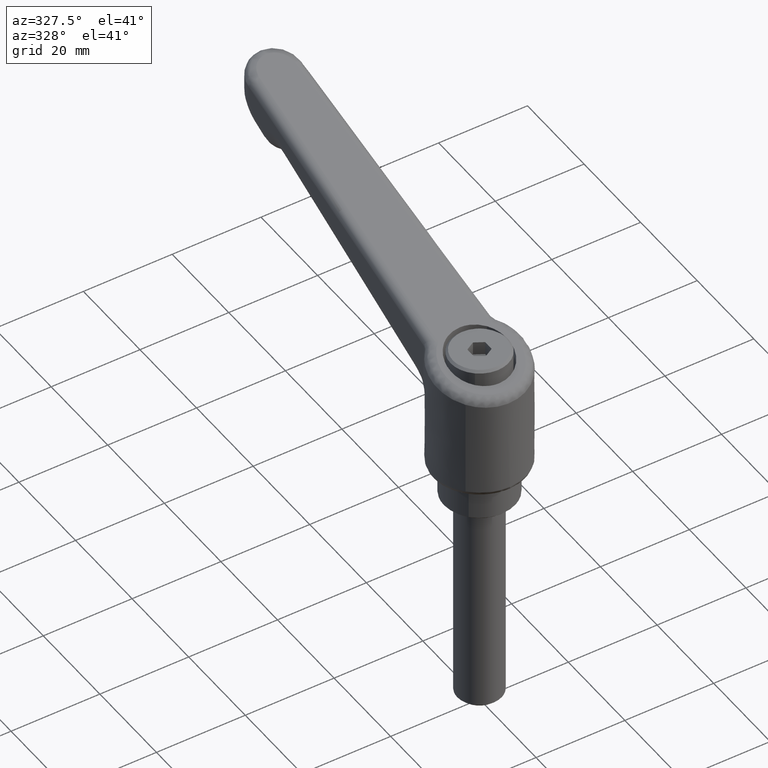
[diagram: clean part render]
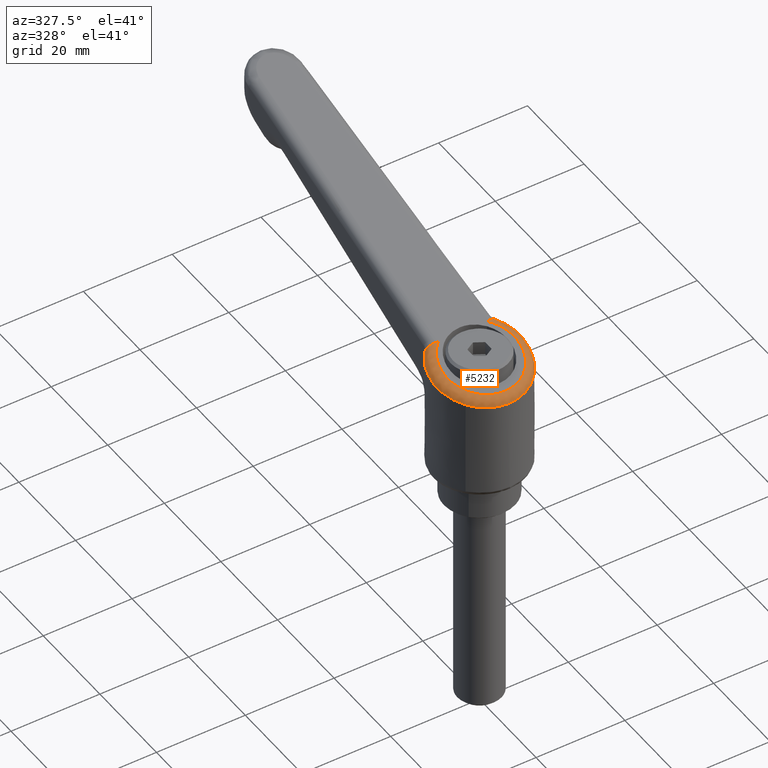
[diagram: same view with one face highlighted and labeled with its STEP entity id]
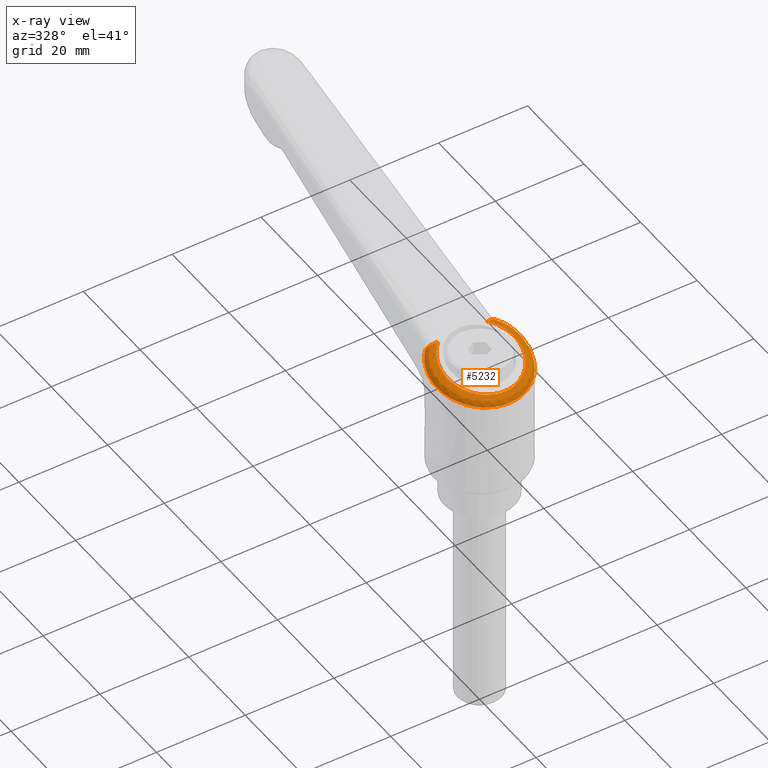
[diagram: x-ray of the same camera — body ghosted, the highlighted face saturated]
A machine part, auxiliary view. The second image highlights one B-rep face of the part: STEP entity #5232.
The next image is the same camera in x-ray: the body ghosted, the highlighted face saturated — about 0% of this face is hidden behind the body in this view.
In plain terms, the highlighted face is a freeform B-spline surface patch.
Its self-contained STEP definition (entity closure, byte-faithful):
#2177=CARTESIAN_POINT('',(-6.823610655429766,-7.980497329307140,22.891822215590260));
#2178=VERTEX_POINT('',#2177);
#2179=CARTESIAN_POINT('',(-7.139241740420342,7.699430327747622,22.822528908771361));
#2180=VERTEX_POINT('',#2179);
#2181=CARTESIAN_POINT('',(-6.823610655429766,-7.980497329307140,22.891822215590256));
#2182=CARTESIAN_POINT('',(-7.235871521434500,-7.627999567568061,22.801317707784730));
#2183=CARTESIAN_POINT('',(-7.609615807687477,-7.234897925188409,22.719268816721080));
#2184=CARTESIAN_POINT('',(-14.488248484233502,0.000000110540548,21.209187716075810));
#2185=CARTESIAN_POINT('',(-7.609615559717934,7.234898150525823,22.719266860720658));
#2186=CARTESIAN_POINT('',(-7.381744137017390,7.474571720486082,22.769291900122631));
#2187=CARTESIAN_POINT('',(-7.139241740420342,7.699430327747622,22.822528908771361));
#2195=(BOUNDED_CURVE()B_SPLINE_CURVE(2,(#2181,#2182,#2183,#2184,#2185,#2186,#2187),.UNSPECIFIED.,.F.,.U.)B_SPLINE_CURVE_WITH_KNOTS((3,2,2,3),(0.308847996444481,0.333333333333333,0.666666666666667,0.681714101473481),.UNSPECIFIED.)CURVE()GEOMETRIC_REPRESENTATION_ITEM()RATIONAL_B_SPLINE_CURVE((0.962529482599804,0.979779418013843,1.0,0.724725290651227,1.0,0.987573465271329,0.976268855369884))REPRESENTATION_ITEM(''));
#2196=EDGE_CURVE('',#2178,#2180,#2195,.T.);
#2268=CARTESIAN_POINT('',(6.841752169418649,-7.964949921515840,25.891804639626351));
#2269=VERTEX_POINT('',#2268);
#2270=CARTESIAN_POINT('',(6.841752169418649,-7.964949921515840,25.891804639626351));
#2271=CARTESIAN_POINT('',(0.015732975373820,-13.828380357866889,24.393275997768502));
#2272=CARTESIAN_POINT('',(-6.823610655429766,-7.980497329307140,22.891822215590256));
#2280=(BOUNDED_CURVE()B_SPLINE_CURVE(2,(#2270,#2271,#2272),.UNSPECIFIED.,.F.,.U.)B_SPLINE_CURVE_WITH_KNOTS((3,3),(0.0,0.308847996444481),.UNSPECIFIED.)CURVE()GEOMETRIC_REPRESENTATION_ITEM()RATIONAL_B_SPLINE_CURVE((1.0,0.744945872637384,0.962529482599804))REPRESENTATION_ITEM(''));
#2281=EDGE_CURVE('',#2269,#2178,#2280,.T.);
#2343=CARTESIAN_POINT('',(6.841752169418649,7.964949921515840,25.891804639626351));
#2344=VERTEX_POINT('',#2343);
#2345=CARTESIAN_POINT('',(-7.139241740420342,7.699430327747622,22.822528908771361));
#2346=CARTESIAN_POINT('',(-0.267237434483416,14.071447203248303,24.331153844491840));
#2347=CARTESIAN_POINT('',(6.841752169418642,7.964949921515840,25.891804639626379));
#2355=(BOUNDED_CURVE()B_SPLINE_CURVE(2,(#2345,#2346,#2347),.UNSPECIFIED.,.F.,.U.)B_SPLINE_CURVE_WITH_KNOTS((3,3),(0.681714101473481,1.0),.UNSPECIFIED.)CURVE()GEOMETRIC_REPRESENTATION_ITEM()RATIONAL_B_SPLINE_CURVE((0.976268855369883,0.737151825379898,1.0))REPRESENTATION_ITEM(''));
#2356=EDGE_CURVE('',#2180,#2344,#2355,.T.);
#4499=CARTESIAN_POINT('',(6.815699914991670,-7.951187561158349,26.225580680634000));
#4500=VERTEX_POINT('',#4499);
#4509=CARTESIAN_POINT('',(6.841752169418649,-7.964949921515840,25.891804639626351));
#4510=CARTESIAN_POINT('',(6.853859786927208,-7.955114455628531,26.003102355773830));
#4511=CARTESIAN_POINT('',(6.844942478059694,-7.950420602596282,26.117073249121091));
#4512=CARTESIAN_POINT('',(6.815699914991670,-7.951187561158349,26.225580680634000));
#4513=B_SPLINE_CURVE_WITH_KNOTS('',3,(#4509,#4510,#4511,#4512),.UNSPECIFIED.,.F.,.U.,(4,4),(0.000000010549703,0.337126375910857),.UNSPECIFIED.);
#4514=EDGE_CURVE('',#2269,#4500,#4513,.T.);
#4589=CARTESIAN_POINT('',(5.940270675266100,-5.519973294428710,28.072980452360650));
#4590=VERTEX_POINT('',#4589);
#4627=CARTESIAN_POINT('',(6.815699914991670,-7.951187561158349,26.225580680634000));
#4628=CARTESIAN_POINT('',(6.776847164123269,-7.952224039955228,26.369502280352108));
#4629=CARTESIAN_POINT('',(6.735899683152852,-7.934386095575589,26.509252974808110));
#4630=CARTESIAN_POINT('',(6.671571994320859,-7.881070794717561,26.713022534366772));
#4631=CARTESIAN_POINT('',(6.649576278599209,-7.858748446168061,26.780148701766031));
#4632=CARTESIAN_POINT('',(6.604872637264183,-7.805249777314331,26.911581116659139));
#4633=CARTESIAN_POINT('',(6.582540020666011,-7.774548066162674,26.974800264596219));
#4634=CARTESIAN_POINT('',(6.537933703850105,-7.705781252450130,27.096595198035761));
#4635=CARTESIAN_POINT('',(6.515659963317729,-7.667713415129088,27.155169235526351));
#4636=CARTESIAN_POINT('',(6.471197899612150,-7.584456024922666,27.267837078720412));
#4637=CARTESIAN_POINT('',(6.448949981854497,-7.539133377237592,27.322069164379389));
#4638=CARTESIAN_POINT('',(6.382767467545852,-7.393338678804280,27.477178574877421));
#4639=CARTESIAN_POINT('',(6.340532647239538,-7.285762016298755,27.567924787307671));
#4640=CARTESIAN_POINT('',(6.279876199056705,-7.110750715467771,27.687504574675700));
#4641=CARTESIAN_POINT('',(6.260110700337241,-7.050117384920137,27.724581295196700));
#4642=CARTESIAN_POINT('',(6.221505207759942,-6.924369251863543,27.793322550541589));
#4643=CARTESIAN_POINT('',(6.202857041723497,-6.859863055740397,27.824638255258758));
#4644=CARTESIAN_POINT('',(6.149175302800781,-6.663166666854674,27.909498088157680));
#4645=CARTESIAN_POINT('',(6.116210469173950,-6.527234955274309,27.954336881123020));
#4646=CARTESIAN_POINT('',(6.070795398181867,-6.316850520976558,28.005893778653121));
#4647=CARTESIAN_POINT('',(6.056290744144198,-6.245400266583697,28.020476353136370));
#4648=CARTESIAN_POINT('',(6.028931231890466,-6.101986151931793,28.044295752354909));
#4649=CARTESIAN_POINT('',(6.016052820796225,-6.029943516164621,28.053572554525189));
#4650=CARTESIAN_POINT('',(5.991825097841295,-5.885227606704326,28.067226219474119));
#4651=CARTESIAN_POINT('',(5.980476040663701,-5.812554218011097,28.071602138725151));
#4652=CARTESIAN_POINT('',(5.964562484715478,-5.703092606344508,28.074689215042529));
#4653=CARTESIAN_POINT('',(5.959443134309769,-5.666530067408090,28.075138084723509));
#4654=CARTESIAN_POINT('',(5.949570309689786,-5.593257056970700,28.074901289362341));
#4655=CARTESIAN_POINT('',(5.944791668683920,-5.556293143372955,28.074206485211288));
#4656=CARTESIAN_POINT('',(5.940270675266100,-5.519973294428710,28.072980452360650));
#4657=B_SPLINE_CURVE_WITH_KNOTS('',3,(#4627,#4628,#4629,#4630,#4631,#4632,#4633,#4634,#4635,#4636,#4637,#4638,#4639,#4640,#4641,#4642,#4643,#4644,#4645,#4646,#4647,#4648,#4649,#4650,#4651,#4652,#4653,#4654,#4655,#4656),.UNSPECIFIED.,.F.,.U.,(4,2,2,2,2,2,2,2,2,2,2,2,2,2,4),(0.0,0.124999999999996,0.187499999999996,0.249999999999996,0.312499999999995,0.374999999999995,0.499999999999995,0.562499999999996,0.624999999999997,0.749999999999998,0.812499999999998,0.874999999999999,0.937499999999999,0.968750000000000,1.0),.UNSPECIFIED.);
#4658=EDGE_CURVE('',#4500,#4590,#4657,.T.);
#4746=CARTESIAN_POINT('',(6.815699914991621,7.951187561158400,26.225580680633950));
#4747=VERTEX_POINT('',#4746);
#4766=CARTESIAN_POINT('',(6.815699914991621,7.951187561158400,26.225580680633950));
#4767=CARTESIAN_POINT('',(6.844584194028115,7.950518681924687,26.116999662675060));
#4768=CARTESIAN_POINT('',(6.853450797864499,7.955219489020862,26.003124545526578));
#4769=CARTESIAN_POINT('',(6.841752169418649,7.964949921515840,25.891804639626351));
#4770=B_SPLINE_CURVE_WITH_KNOTS('',3,(#4766,#4767,#4768,#4769),.UNSPECIFIED.,.F.,.U.,(4,4),(9.789436E-009,0.337050919251190),.UNSPECIFIED.);
#4771=EDGE_CURVE('',#4747,#2344,#4770,.T.);
#4838=CARTESIAN_POINT('',(5.940270675266040,5.519973294428770,28.072980452360650));
#4839=VERTEX_POINT('',#4838);
#4840=CARTESIAN_POINT('',(5.940270675266060,5.519973294428730,28.072980452360650));
#4841=CARTESIAN_POINT('',(5.944791668684234,5.556293143372976,28.074206485211398));
#4842=CARTESIAN_POINT('',(5.949570309690695,5.593257056970640,28.074901289362579));
#4843=CARTESIAN_POINT('',(5.959443134310202,5.666530067408091,28.075138084723601));
#4844=CARTESIAN_POINT('',(5.964562484715880,5.703092606344514,28.074689215042600));
#4845=CARTESIAN_POINT('',(5.980476040663914,5.812554218011131,28.071602138725190));
#4846=CARTESIAN_POINT('',(5.991825097841465,5.885227606704362,28.067226219474140));
#4847=CARTESIAN_POINT('',(6.016052820796337,6.029943516164671,28.053572554525200));
#4848=CARTESIAN_POINT('',(6.028931231890555,6.101986151931844,28.044295752354909));
#4849=CARTESIAN_POINT('',(6.056290744144259,6.245400266583751,28.020476353136370));
#4850=CARTESIAN_POINT('',(6.070795398181920,6.316850520976605,28.005893778653121));
#4851=CARTESIAN_POINT('',(6.116210469173979,6.527234955274365,27.954336881123020));
#4852=CARTESIAN_POINT('',(6.149175302800795,6.663166666854728,27.909498088157651));
#4853=CARTESIAN_POINT('',(6.202857041723500,6.859863055740454,27.824638255258730));
#4854=CARTESIAN_POINT('',(6.221505207759944,6.924369251863593,27.793322550541561));
#4855=CARTESIAN_POINT('',(6.260110700337241,7.050117384920194,27.724581295196678));
#4856=CARTESIAN_POINT('',(6.279876199056694,7.110750715467829,27.687504574675661));
#4857=CARTESIAN_POINT('',(6.340532647239519,7.285762016298810,27.567924787307639));
#4858=CARTESIAN_POINT('',(6.382767467545826,7.393338678804339,27.477178574877382));
#4859=CARTESIAN_POINT('',(6.448949981854463,7.539133377237647,27.322069164379339));
#4860=CARTESIAN_POINT('',(6.471197899612124,7.584456024922723,27.267837078720358));
#4861=CARTESIAN_POINT('',(6.515659963317700,7.667713415129143,27.155169235526309));
#4862=CARTESIAN_POINT('',(6.537933703850073,7.705781252450183,27.096595198035729));
#4863=CARTESIAN_POINT('',(6.582540020665978,7.774548066162727,26.974800264596180));
#4864=CARTESIAN_POINT('',(6.604872637264151,7.805249777314391,26.911581116659100));
#4865=CARTESIAN_POINT('',(6.649576278599171,7.858748446168113,26.780148701765992));
#4866=CARTESIAN_POINT('',(6.671571994320817,7.881070794717614,26.713022534366729));
#4867=CARTESIAN_POINT('',(6.735899683152808,7.934386095575641,26.509252974808060));
#4868=CARTESIAN_POINT('',(6.776847164123224,7.952224039955278,26.369502280352059));
#4869=CARTESIAN_POINT('',(6.815699914991621,7.951187561158400,26.225580680633950));
#4870=B_SPLINE_CURVE_WITH_KNOTS('',3,(#4840,#4841,#4842,#4843,#4844,#4845,#4846,#4847,#4848,#4849,#4850,#4851,#4852,#4853,#4854,#4855,#4856,#4857,#4858,#4859,#4860,#4861,#4862,#4863,#4864,#4865,#4866,#4867,#4868,#4869),.UNSPECIFIED.,.F.,.U.,(4,2,2,2,2,2,2,2,2,2,2,2,2,2,4),(0.0,0.031250000000000,0.062499999999999,0.124999999999999,0.187499999999998,0.249999999999998,0.374999999999997,0.437499999999996,0.499999999999996,0.624999999999996,0.687499999999997,0.749999999999998,0.812499999999998,0.874999999999999,1.0),.UNSPECIFIED.);
#4871=EDGE_CURVE('',#4839,#4747,#4870,.T.);
#5026=CARTESIAN_POINT('',(6.087272173623401,-5.318859253386026,28.112845289449560));
#5027=CARTESIAN_POINT('',(5.541238018970376,-5.997603486814889,27.964768141505829));
#5028=CARTESIAN_POINT('',(4.889981128080330,-6.591496791620342,27.788155997082399));
#5029=CARTESIAN_POINT('',(3.437714601817707,-7.554168875147658,27.394320770053838));
#5030=CARTESIAN_POINT('',(2.636956443253336,-7.922779336626932,27.177165884590259));
#5031=CARTESIAN_POINT('',(0.961054464732773,-8.399990519407895,26.722683718780896));
#5032=CARTESIAN_POINT('',(0.086160228079715,-8.508531662809554,26.485424122083472));
#5033=CARTESIAN_POINT('',(-1.655665425328537,-8.455255742759803,26.013064338773177));
#5034=CARTESIAN_POINT('',(-2.522343374565372,-8.293455321996149,25.778032889155785));
#5035=CARTESIAN_POINT('',(-4.166116393098401,-7.714614642699660,25.332263666888146));
#5036=CARTESIAN_POINT('',(-4.942975283697365,-7.297664471832364,25.121589942736733));
#5037=CARTESIAN_POINT('',(-6.333915135821987,-6.247690037654954,24.744385688188313));
#5038=CARTESIAN_POINT('',(-6.947797405255546,-5.614821310567767,24.577909040424895));
#5039=CARTESIAN_POINT('',(-7.954914174986747,-4.192533562225321,24.304792464039945));
#5040=CARTESIAN_POINT('',(-8.348005119005403,-3.403321954319122,24.198191465958072));
#5041=CARTESIAN_POINT('',(-8.876448648825527,-1.742621757869974,24.054884659820974));
#5042=CARTESIAN_POINT('',(-9.011725951852537,-0.871373954605547,24.018199267445709));
#5043=CARTESIAN_POINT('',(-9.011725951852537,0.871373954605502,24.018199267445709));
#5044=CARTESIAN_POINT('',(-8.876448648826264,1.742621757870100,24.054884659820761));
#5045=CARTESIAN_POINT('',(-8.348005119004709,3.403321954318862,24.198191465958267));
#5046=CARTESIAN_POINT('',(-7.954914174985673,4.192533562225671,24.304792464040197));
#5047=CARTESIAN_POINT('',(-6.947797405256669,5.614821310567334,24.577909040424601));
#5048=CARTESIAN_POINT('',(-6.333915135822034,6.247690037654897,24.744385688188263));
#5049=CARTESIAN_POINT('',(-4.942975283697423,7.297664471832329,25.121589942736737));
#5050=CARTESIAN_POINT('',(-4.166116393098335,7.714614642699610,25.332263666888192));
#5051=CARTESIAN_POINT('',(-2.522343374565677,8.293455321996126,25.778032889155707));
#5052=CARTESIAN_POINT('',(-1.655665425328611,8.455255742759801,26.013064338773152));
#5053=CARTESIAN_POINT('',(0.086160228079633,8.508531662809551,26.485424122083472));
#5054=CARTESIAN_POINT('',(0.961054464732398,8.399990519408211,26.722683718780807));
#5055=CARTESIAN_POINT('',(2.636956443253597,7.922779336626650,27.177165884590313));
#5056=CARTESIAN_POINT('',(3.437714601818221,7.554168875147536,27.394320770053994));
#5057=CARTESIAN_POINT('',(4.889981128079768,6.591496791620496,27.788155997082235));
#5058=CARTESIAN_POINT('',(5.541238018970531,5.997603486814831,27.964768141505903));
#5059=CARTESIAN_POINT('',(6.087272173623338,5.318859253386102,28.112845289449542));
#5060=CARTESIAN_POINT('',(6.093009699648185,-5.323815670540732,28.114401229646258));
#5061=CARTESIAN_POINT('',(5.546434406722365,-6.003146679500229,27.966177332252173));
#5062=CARTESIAN_POINT('',(4.894556491486482,-6.597510059393946,27.789396774345544));
#5063=CARTESIAN_POINT('',(3.440971723424153,-7.560882583479643,27.395204057800374));
#5064=CARTESIAN_POINT('',(2.639513627543239,-7.929717675028093,27.177859358713036));
#5065=CARTESIAN_POINT('',(0.962212328211951,-8.407146390971503,26.722997715845462));
#5066=CARTESIAN_POINT('',(0.086619231853045,-8.515674556239722,26.485548597757887));
#5067=CARTESIAN_POINT('',(-1.656545869257158,-8.462168833855190,26.012825574174357));
#5068=CARTESIAN_POINT('',(-2.523860904687639,-8.300147266223670,25.777621355315805));
#5069=CARTESIAN_POINT('',(-4.168808036573797,-7.720696751789955,25.331533729235495));
#5070=CARTESIAN_POINT('',(-4.946199146722744,-7.303356143360819,25.120715674271860));
#5071=CARTESIAN_POINT('',(-6.338074101669430,-6.252472904373228,24.743257832364922));
#5072=CARTESIAN_POINT('',(-6.952354611352776,-5.619086559292970,24.576673187180688));
#5073=CARTESIAN_POINT('',(-7.960118883575274,-4.195676418782216,24.303381016794191));
#5074=CARTESIAN_POINT('',(-8.353455576666519,-3.405862680326671,24.196713374855971));
#5075=CARTESIAN_POINT('',(-8.882229729095764,-1.743912327361810,24.053316908296377));
#5076=CARTESIAN_POINT('',(-9.017590041786614,-0.872020277925869,24.016609004812260));
#5077=CARTESIAN_POINT('',(-9.017590041786614,0.872020277925824,24.016609004812260));
#5078=CARTESIAN_POINT('',(-8.882229729096494,1.743912327361934,24.053316908296168));
#5079=CARTESIAN_POINT('',(-8.353455576665825,3.405862680326411,24.196713374856145));
#5080=CARTESIAN_POINT('',(-7.960118883574197,4.195676418782561,24.303381016794450));
#5081=CARTESIAN_POINT('',(-6.952354611353909,5.619086559292548,24.576673187180411));
#5082=CARTESIAN_POINT('',(-6.338074101669482,6.252472904373180,24.743257832364893));
#5083=CARTESIAN_POINT('',(-4.946199146722798,7.303356143360776,25.120715674271842));
#5084=CARTESIAN_POINT('',(-4.168808036573727,7.720696751789906,25.331533729235524));
#5085=CARTESIAN_POINT('',(-2.523860904687941,8.300147266223638,25.777621355315723));
#5086=CARTESIAN_POINT('',(-1.656545869257233,8.462168833855188,26.012825574174339));
#5087=CARTESIAN_POINT('',(0.086619231852964,8.515674556239713,26.485548597757859));
#5088=CARTESIAN_POINT('',(0.962212328211572,8.407146390971809,26.722997715845334));
#5089=CARTESIAN_POINT('',(2.639513627543504,7.929717675027810,27.177859358713100));
#5090=CARTESIAN_POINT('',(3.440971723424670,7.560882583479517,27.395204057800527));
#5091=CARTESIAN_POINT('',(4.894556491485916,6.597510059394105,27.789396774345384));
#5092=CARTESIAN_POINT('',(5.546434406722521,6.003146679500165,27.966177332252229));
#5093=CARTESIAN_POINT('',(6.093009699648122,5.323815670540809,28.114401229646248));
#5094=CARTESIAN_POINT('',(7.921974900712178,-6.903784887021387,28.610392090939538));
#5095=CARTESIAN_POINT('',(7.185452466226240,-7.751552178128264,28.410657073326945));
#5096=CARTESIAN_POINT('',(6.320020016390012,-8.470955535927416,28.175963386465529));
#5097=CARTESIAN_POINT('',(4.429336402305293,-9.598139088275161,27.663235318353195));
#5098=CARTESIAN_POINT('',(3.404708985538741,-10.005901373533685,27.385370089069976));
#5099=CARTESIAN_POINT('',(1.299106839280806,-10.489234560298657,26.814358994131332));
#5100=CARTESIAN_POINT('',(0.218310467803732,-10.565018197268790,26.521261496781324));
#5101=CARTESIAN_POINT('',(-1.902462662981218,-10.393064307872100,25.946136234074437));
#5102=CARTESIAN_POINT('',(-2.942321491891410,-10.145458189475852,25.664140449858312));
#5103=CARTESIAN_POINT('',(-4.893800949133095,-9.358909993693699,25.134925363521315));
#5104=CARTESIAN_POINT('',(-5.805294608306088,-8.820073553630666,24.887740493731229));
#5105=CARTESIAN_POINT('',(-7.425862890459417,-7.503444656789224,24.448264085110100));
#5106=CARTESIAN_POINT('',(-8.134804506649683,-6.725782811541864,24.256008615946126));
#5107=CARTESIAN_POINT('',(-9.293275851877384,-5.000701531703042,23.941846706264435));
#5108=CARTESIAN_POINT('',(-9.742694760609030,-4.053455294527199,23.819970318735315));
#5109=CARTESIAN_POINT('',(-10.346088096584573,-2.070704356037967,23.656338129214841));
#5110=CARTESIAN_POINT('',(-10.500000000000002,-1.035407288876002,23.614599282846953));
#5111=CARTESIAN_POINT('',(-10.500000000000002,1.035407288875948,23.614599282846953));
#5112=CARTESIAN_POINT('',(-10.346088096583834,2.070704356037507,23.656338129216355));
#5113=CARTESIAN_POINT('',(-9.742694760609812,4.053455294527498,23.819970318733805));
#5114=CARTESIAN_POINT('',(-9.293275851875888,5.000701531702227,23.941846706267494));
#5115=CARTESIAN_POINT('',(-8.134804506651250,6.725782811542582,24.256008615943049));
#5116=CARTESIAN_POINT('',(-7.425862890460256,7.503444656790721,24.448264085111639));
#5117=CARTESIAN_POINT('',(-5.805294608305378,8.820073553629063,24.887740493729659));
#5118=CARTESIAN_POINT('',(-4.893800949133619,9.358909993695987,25.134925363519717));
#5119=CARTESIAN_POINT('',(-2.942321491891157,10.145458189473452,25.664140449859850));
#5120=CARTESIAN_POINT('',(-1.902462662981605,10.393064307872095,25.946136234074416));
#5121=CARTESIAN_POINT('',(0.218310467803928,10.565018197268783,26.521261496781307));
#5122=CARTESIAN_POINT('',(1.299106839279755,10.489234560300559,26.814358994130650));
#5123=CARTESIAN_POINT('',(3.404708985539649,10.005901373531819,27.385370089070637));
#5124=CARTESIAN_POINT('',(4.429336402306480,9.598139088273335,27.663235318352754));
#5125=CARTESIAN_POINT('',(6.320020016388761,8.470955535929280,28.175963386465966));
#5126=CARTESIAN_POINT('',(7.185452466226708,7.751552178126577,28.410657073325520));
#5127=CARTESIAN_POINT('',(7.921974900712097,6.903784887021485,28.610392090939516));
#5128=CARTESIAN_POINT('',(8.181221319814670,-6.581612218981611,26.178047493785861));
#5129=CARTESIAN_POINT('',(7.505566790572419,-7.421481609953466,26.029757850435665));
#5130=CARTESIAN_POINT('',(6.699742978686103,-8.156309560593062,25.852901643855727));
#5131=CARTESIAN_POINT('',(4.902844870752059,-9.347408756811214,25.458542272208874));
#5132=CARTESIAN_POINT('',(3.912075553408531,-9.803456033206320,25.241107384028869));
#5133=CARTESIAN_POINT('',(1.838538671353461,-10.393837642698474,24.786061161518596));
#5134=CARTESIAN_POINT('',(0.756077863091647,-10.528084052804491,24.548517680927812));
#5135=CARTESIAN_POINT('',(-1.398975194595418,-10.462078135034796,24.075610575433153));
#5136=CARTESIAN_POINT('',(-2.471247798749559,-10.261833985816036,23.840316654361214));
#5137=CARTESIAN_POINT('',(-4.504959910452875,-9.545556197870322,23.394061744597298));
#5138=CARTESIAN_POINT('',(-5.466096133074896,-9.029627011126934,23.183166118996660));
#5139=CARTESIAN_POINT('',(-7.186987819258914,-7.730432174838763,22.805571119506915));
#5140=CARTESIAN_POINT('',(-7.946485067542697,-6.947358599398151,22.638926894605355));
#5141=CARTESIAN_POINT('',(-9.192503501923245,-5.187513804604528,22.365537728501021));
#5142=CARTESIAN_POINT('',(-9.678836734585284,-4.211004875372683,22.258832675266341));
#5143=CARTESIAN_POINT('',(-10.332634466321206,-2.156179394895512,22.115386048070757));
#5144=CARTESIAN_POINT('',(-10.500000000000007,-1.078170552710572,22.078665397622480));
#5145=CARTESIAN_POINT('',(-10.500000000000007,1.078170552710516,22.078665397622480));
#5146=CARTESIAN_POINT('',(-10.332634466321245,2.156179394895380,22.115386048070764));
#5147=CARTESIAN_POINT('',(-9.678836734585307,4.211004875372651,22.258832675266348));
#5148=CARTESIAN_POINT('',(-9.192503501923021,5.187513804604842,22.365537728502538));
#5149=CARTESIAN_POINT('',(-7.946485067542985,6.947358599397738,22.638926894603827));
#5150=CARTESIAN_POINT('',(-7.186987819258972,7.730432174838693,22.805571119506876));
#5151=CARTESIAN_POINT('',(-5.466096133074972,9.029627011126891,23.183166118996635));
#5152=CARTESIAN_POINT('',(-4.504959910452765,9.545556197870333,23.394061744597266));
#5153=CARTESIAN_POINT('',(-2.471247798749956,10.261833985815928,23.840316654361178));
#5154=CARTESIAN_POINT('',(-1.398975194595536,10.462078135034785,24.075610575433142));
#5155=CARTESIAN_POINT('',(0.756077863091572,10.528084052804491,24.548517680927787));
#5156=CARTESIAN_POINT('',(1.838538671352972,10.393837642698594,24.786061161518376));
#5157=CARTESIAN_POINT('',(3.912075553408880,9.803456033206237,25.241107384029061));
#5158=CARTESIAN_POINT('',(4.902844870752608,9.347408756810856,25.458542272208902));
#5159=CARTESIAN_POINT('',(6.699742978685496,8.156309560593460,25.852901643855706));
#5160=CARTESIAN_POINT('',(7.505566790572552,7.421481609953292,26.029757850435839));
#5161=CARTESIAN_POINT('',(8.181221319814593,6.581612218981706,26.178047493785840));
#5162=CARTESIAN_POINT('',(8.182032073199773,-6.580604673411229,26.170440709388508));
#5163=CARTESIAN_POINT('',(7.506578555470861,-7.420438376991080,26.022232694335955));
#5164=CARTESIAN_POINT('',(6.700958025268420,-8.155302748904198,25.845468255540734));
#5165=CARTESIAN_POINT('',(4.904400481227859,-9.346585036104589,25.451299226250814));
#5166=CARTESIAN_POINT('',(3.913765868910426,-9.802781577066103,25.233963672322201));
#5167=CARTESIAN_POINT('',(1.840386901128266,-10.393510788751312,24.779111700579289));
#5168=CARTESIAN_POINT('',(0.757946434459527,-10.527955718350881,24.541663021008368));
#5169=CARTESIAN_POINT('',(-1.397178154505797,-10.462324458174772,24.068934322679489));
#5170=CARTESIAN_POINT('',(-2.469544750027249,-10.262254713303363,23.833723077114463));
#5171=CARTESIAN_POINT('',(-4.503520743769563,-9.546247007151999,23.387618512861643));
#5172=CARTESIAN_POINT('',(-5.464827184071883,-9.030410955249279,23.176789268534975));
#5173=CARTESIAN_POINT('',(-7.186077347381934,-7.731297337329639,22.799309998410529));
#5174=CARTESIAN_POINT('',(-7.945761521916630,-6.948209919861435,22.632713874791694));
#5175=CARTESIAN_POINT('',(-9.192111298634723,-5.188240872970027,22.359402776154589));
#5176=CARTESIAN_POINT('',(-9.678586972738474,-4.211621084120843,22.252726745515059));
#5177=CARTESIAN_POINT('',(-10.332581499486556,-2.156515909439272,22.109319332062572));
#5178=CARTESIAN_POINT('',(-10.499999999999995,-1.078339191593616,22.072608372231844));
#5179=CARTESIAN_POINT('',(-10.500000000000004,1.078339191593559,22.072608372231844));
#5180=CARTESIAN_POINT('',(-10.332581499486599,2.156515909439142,22.109319332062551));
#5181=CARTESIAN_POINT('',(-9.678586972738488,4.211621084120806,22.252726745515059));
#5182=CARTESIAN_POINT('',(-9.192111298634512,5.188240872970349,22.359402776156109));
#5183=CARTESIAN_POINT('',(-7.945761521916910,6.948209919861016,22.632713874790152));
#5184=CARTESIAN_POINT('',(-7.186077347381991,7.731297337329565,22.799309998410507));
#5185=CARTESIAN_POINT('',(-5.464827184071963,9.030410955249245,23.176789268534968));
#5186=CARTESIAN_POINT('',(-4.503520743769449,9.546247007152001,23.387618512861618));
#5187=CARTESIAN_POINT('',(-2.469544750027650,10.262254713303262,23.833723077114435));
#5188=CARTESIAN_POINT('',(-1.397178154505915,10.462324458174761,24.068934322679489));
#5189=CARTESIAN_POINT('',(0.757946434459451,10.527955718350896,24.541663021008350));
#5190=CARTESIAN_POINT('',(1.840386901127778,10.393510788751440,24.779111700579076));
#5191=CARTESIAN_POINT('',(3.913765868910774,9.802781577066023,25.233963672322375));
#5192=CARTESIAN_POINT('',(4.904400481228406,9.346585036104235,25.451299226250843));
#5193=CARTESIAN_POINT('',(6.700958025267813,8.155302748904592,25.845468255540705));
#5194=CARTESIAN_POINT('',(7.506578555470989,7.420438376990910,26.022232694336125));
#5195=CARTESIAN_POINT('',(8.182032073199698,6.580604673411325,26.170440709388487));
#5203=(BOUNDED_SURFACE()B_SPLINE_SURFACE(3,2,((#5026,#5060,#5094,#5128,#5162),(#5027,#5061,#5095,#5129,#5163),(#5028,#5062,#5096,#5130,#5164),(#5029,#5063,#5097,#5131,#5165),(#5030,#5064,#5098,#5132,#5166),(#5031,#5065,#5099,#5133,#5167),(#5032,#5066,#5100,#5134,#5168),(#5033,#5067,#5101,#5135,#5169),(#5034,#5068,#5102,#5136,#5170),(#5035,#5069,#5103,#5137,#5171),(#5036,#5070,#5104,#5138,#5172),(#5037,#5071,#5105,#5139,#5173),(#5038,#5072,#5106,#5140,#5174),(#5039,#5073,#5107,#5141,#5175),(#5040,#5074,#5108,#5142,#5176),(#5041,#5075,#5109,#5143,#5177),(#5042,#5076,#5110,#5144,#5178),(#5043,#5077,#5111,#5145,#5179),(#5044,#5078,#5112,#5146,#5180),(#5045,#5079,#5113,#5147,#5181),(#5046,#5080,#5114,#5148,#5182),(#5047,#5081,#5115,#5149,#5183),(#5048,#5082,#5116,#5150,#5184),(#5049,#5083,#5117,#5151,#5185),(#5050,#5084,#5118,#5152,#5186),(#5051,#5085,#5119,#5153,#5187),(#5052,#5086,#5120,#5154,#5188),(#5053,#5087,#5121,#5155,#5189),(#5054,#5088,#5122,#5156,#5190),(#5055,#5089,#5123,#5157,#5191),(#5056,#5090,#5124,#5158,#5192),(#5057,#5091,#5125,#5159,#5193),(#5058,#5092,#5126,#5160,#5194),(#5059,#5093,#5127,#5161,#5195)),.UNSPECIFIED.,.F.,.F.,.U.)B_SPLINE_SURFACE_WITH_KNOTS((4,2,2,2,2,2,2,2,2,2,2,2,2,2,2,2,4),(3,1,1,3),(0.0,3.310586864433216,6.621173728866421,9.931760593299636,13.242347457732849,16.552934322166060,19.863521186599272,23.174108051032491,26.484694915465699,29.795281779898900,33.105868644332112,36.416455508765331,39.727042373198543,43.037629237631741,46.348216102064953,49.658802966498172,52.969389830931377),(0.0,0.019088642254301,3.824865271020318,3.843894451049910),.UNSPECIFIED.)GEOMETRIC_REPRESENTATION_ITEM()RATIONAL_B_SPLINE_SURFACE(((1.003702521178321,1.001851260589161,0.630906997463633,1.001845493805348,1.003690987610697),(1.003635577505590,1.001817788752795,0.637580407277984,1.001812126235689,1.003624252471378),(1.003556784496766,1.001778392248383,0.645435041135515,1.001772852453667,1.003545704907334),(1.003384993309623,1.001692496654811,0.662560378714504,1.001687224429838,1.003374448859675),(1.003292025057473,1.001646012528737,0.671828099187599,1.001640885104504,1.003281770209008),(1.003101755161181,1.001550877580590,0.690795522716764,1.001546046507224,1.003092093014448),(1.003004482969670,1.001502241484835,0.700492289730071,1.001497561915720,1.002995123831440),(1.002814730829221,1.001407365414611,0.719408099764078,1.001402981389942,1.002805962779884),(1.002722264746124,1.001361132373062,0.728625760541533,1.001356892366992,1.002713784733984),(1.002549837122538,1.001274918561269,0.745814542521304,1.001270947116209,1.002541894232418),(1.002469880467976,1.001234940233988,0.753785176660442,1.001231093323730,1.002462186647461),(1.002328514286478,1.001164257143239,0.767877538560118,1.001160630414897,1.002321260829795),(1.002267105585693,1.001133552792847,0.773999183964171,1.001130021710332,1.002260043420664),(1.002167139546776,1.001083569773388,0.783964492379281,1.001080194390871,1.002160388781741),(1.002128581738029,1.001064290869014,0.787808202304613,1.001060975541399,1.002121951082798),(1.002076887169817,1.001038443584908,0.792961475568269,1.001035208773078,1.002070417546155),(1.002063749935549,1.001031874967775,0.794271086238181,1.001028660617566,1.002057321235133),(1.002063749935549,1.001031874967775,0.794271086238181,1.001028660617566,1.002057321235133),(1.002076887169814,1.001038443584907,0.792961475568561,1.001035208773076,1.002070417546152),(1.002128581738032,1.001064290869016,0.787808202304321,1.001060975541400,1.002121951082801),(1.002167139546775,1.001083569773388,0.783964492379428,1.001080194390870,1.002160388781739),(1.002267105585695,1.001133552792847,0.773999183964024,1.001130021710333,1.002260043420666),(1.002328514286482,1.001164257143241,0.767877538559821,1.001160630414899,1.002321260829798),(1.002469880467973,1.001234940233987,0.753785176660740,1.001231093323729,1.002462186647458),(1.002549837122539,1.001274918561270,0.745814542521156,1.001270947116210,1.002541894232420),(1.002722264746122,1.001361132373061,0.728625760541685,1.001356892366991,1.002713784733982),(1.002814730829224,1.001407365414612,0.719408099763827,1.001402981389943,1.002805962779886),(1.003004482969667,1.001502241484834,0.700492289730322,1.001497561915719,1.002995123831437),(1.003101755161185,1.001550877580593,0.690795522716338,1.001546046507226,1.003092093014452),(1.003292025057469,1.001646012528735,0.671828099188026,1.001640885104502,1.003281770209004),(1.003384993309621,1.001692496654810,0.662560378714670,1.001687224429837,1.003374448859673),(1.003556784496768,1.001778392248384,0.645435041135350,1.001772852453668,1.003545704907336),(1.003635577505588,1.001817788752794,0.637580407278110,1.001812126235688,1.003624252471377),(1.003702521178321,1.001851260589161,0.630906997463634,1.001845493805348,1.003690987610697)))REPRESENTATION_ITEM('')SURFACE());
#5204=ORIENTED_EDGE('',*,*,#2356,.F.);
#5205=ORIENTED_EDGE('',*,*,#2196,.F.);
#5206=ORIENTED_EDGE('',*,*,#2281,.F.);
#5207=ORIENTED_EDGE('',*,*,#4514,.T.);
#5208=ORIENTED_EDGE('',*,*,#4658,.T.);
#5209=CARTESIAN_POINT('',(5.940270675266040,5.519973294428770,28.072980452360650));
#5210=CARTESIAN_POINT('',(2.092957256438765,10.025071493159286,27.029640592663412));
#5211=CARTESIAN_POINT('',(-3.465254488648613,7.974702619111119,25.522328026468902));
#5212=CARTESIAN_POINT('',(-9.023466233735919,5.924333745062977,24.015015460274405));
#5213=CARTESIAN_POINT('',(-9.023466233735919,-9.606188E-014,24.015015460274409));
#5214=CARTESIAN_POINT('',(-9.023466233735919,-5.924333745063118,24.015015460274405));
#5215=CARTESIAN_POINT('',(-3.465254488648433,-7.974702619111184,25.522328026468951));
#5216=CARTESIAN_POINT('',(2.092957256438992,-10.025071493159230,27.029640592663473));
#5217=CARTESIAN_POINT('',(5.940270675266100,-5.519973294428710,28.072980452360650));
#5225=(BOUNDED_CURVE()B_SPLINE_CURVE(2,(#5209,#5210,#5211,#5212,#5213,#5214,#5215,#5216,#5217),.UNSPECIFIED.,.F.,.U.)B_SPLINE_CURVE_WITH_KNOTS((3,2,2,2,3),(0.0,0.250000000000000,0.500000000000000,0.750000000000000,1.0),.UNSPECIFIED.)CURVE()GEOMETRIC_REPRESENTATION_ITEM()RATIONAL_B_SPLINE_CURVE((1.0,0.820394032118735,1.0,0.820394032118735,1.0,0.820394032118735,1.0,0.820394032118735,1.0))REPRESENTATION_ITEM(''));
#5226=EDGE_CURVE('',#4839,#4590,#5225,.T.);
#5227=ORIENTED_EDGE('',*,*,#5226,.F.);
#5228=ORIENTED_EDGE('',*,*,#4871,.T.);
#5229=ORIENTED_EDGE('',*,*,#4771,.T.);
#5230=EDGE_LOOP('',(#5204,#5205,#5206,#5207,#5208,#5227,#5228,#5229));
#5231=FACE_OUTER_BOUND('',#5230,.T.);
#5232=ADVANCED_FACE('',(#5231),#5203,.T.);